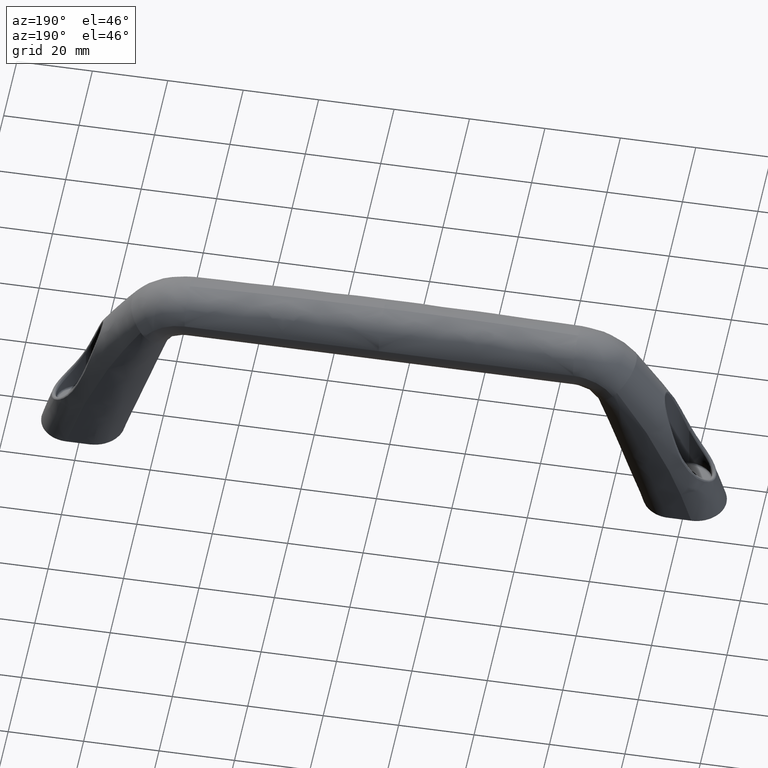
[diagram: clean part render]
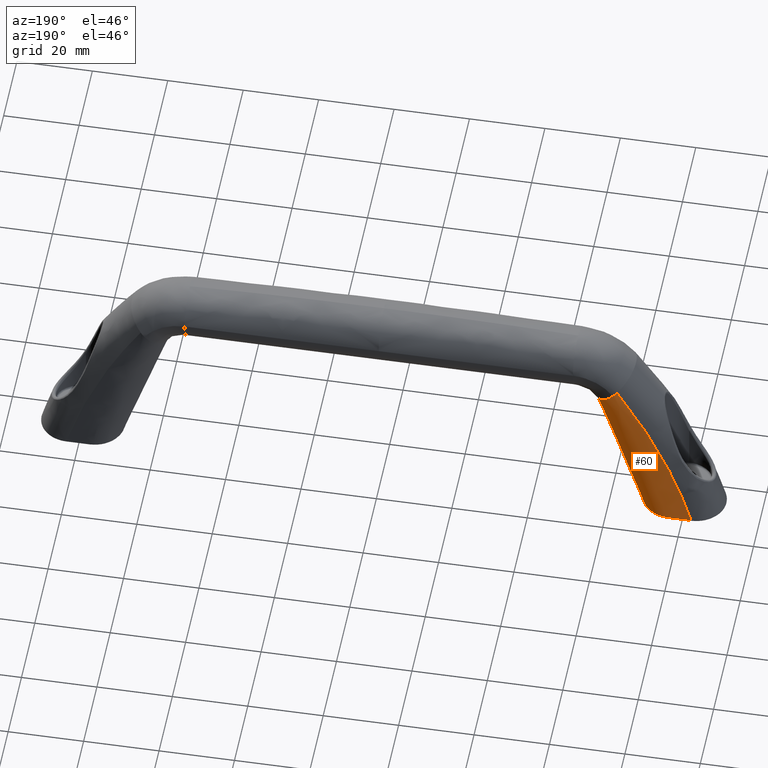
[diagram: same view with one face highlighted and labeled with its STEP entity id]
A machine part, auxiliary view. The second image highlights one B-rep face of the part: STEP entity #60.
In plain terms, the highlighted face is a freeform B-spline surface patch.
Its self-contained STEP definition (entity closure, byte-faithful):
#60=ADVANCED_FACE('',(#297),#296,.T.);
#296=( BOUNDED_SURFACE() B_SPLINE_SURFACE( 3,2,((#2112,#2113,#2114,#2115,#2116),(#2117,#2118,#2119,#2120,#2121),(#2122,#2123,#2124,#2125,#2126),(#2127,#2128,#2129,#2130,#2131),(#2132,#2133,#2134,#2135,#2136),(#2137,#2138,#2139,#2140,#2141),(#2142,#2143,#2144,#2145,#2146),(#2147,#2148,#2149,#2150,#2151),(#2152,#2153,#2154,#2155,#2156),(#2157,#2158,#2159,#2160,#2161)), .UNSPECIFIED.,.F.,.F.,.F.) B_SPLINE_SURFACE_WITH_KNOTS((4,2,2,2,4),(3,2,3),(-1.44328993201E-14,1.17126444058E+01,2.34252888115E+01,3.51379332173E+01,4.68505776231E+01),(-6.55031584529E-15,1.26555991594E+01,1.42983601190E+01), .UNSPECIFIED. ) GEOMETRIC_REPRESENTATION_ITEM() RATIONAL_B_SPLINE_SURFACE(((1.00000000000E+00,7.07106781187E-01,1.00000000000E+00,9.86890175793E-01,1.00000000000E+00),(1.00000000000E+00,7.07106781187E-01,1.00000000000E+00,9.86890175793E-01,1.00000000000E+00),(1.00000000000E+00,7.07106781187E-01,1.00000000000E+00,9.87709539806E-01,1.00000000000E+00),(1.00000000000E+00,7.07106781187E-01,1.00000000000E+00,9.90167631845E-01,1.00000000000E+00),(1.00000000000E+00,7.07106781187E-01,1.00000000000E+00,9.91806359871E-01,1.00000000000E+00),(1.00000000000E+00,7.07106781187E-01,1.00000000000E+00,9.95083815922E-01,1.00000000000E+00),(1.00000000000E+00,7.07106781187E-01,1.00000000000E+00,9.96722543948E-01,1.00000000000E+00),(1.00000000000E+00,7.07106781187E-01,1.00000000000E+00,9.99180635987E-01,1.00000000000E+00),(1.00000000000E+00,7.07106781187E-01,1.00000000000E+00,1.00000000000E+00,1.00000000000E+00),(1.00000000000E+00,7.07106781187E-01,1.00000000000E+00,1.00000000000E+00,1.00000000000E+00))) REPRESENTATION_ITEM('') SURFACE() );
#297=FACE_OUTER_BOUND('',#2162,.T.);
#2112=CARTESIAN_POINT('',(-1.36710008646E+02,2.85000000150E+01,5.86999733827E+01));
#2113=CARTESIAN_POINT('',(-1.36710008646E+02,3.65566123028E+01,5.86999733827E+01));
#2114=CARTESIAN_POINT('',(-1.42077784042E+02,3.65566123028E+01,6.47079671291E+01));
#2115=CARTESIAN_POINT('',(-1.42629878961E+02,3.65566123028E+01,6.53259107982E+01));
#2116=CARTESIAN_POINT('',(-1.43153212185E+02,3.62926413948E+01,6.59116623447E+01));
#2117=CARTESIAN_POINT('',(-1.37717507926E+02,2.85000000150E+01,5.55999755995E+01));
#2118=CARTESIAN_POINT('',(-1.37717507926E+02,3.65566123028E+01,5.55999755995E+01));
#2119=CARTESIAN_POINT('',(-1.44066837450E+02,3.65566123028E+01,6.13731842310E+01));
#2120=CARTESIAN_POINT('',(-1.44717450240E+02,3.65566123028E+01,6.19673061865E+01));
#2121=CARTESIAN_POINT('',(-1.45334507422E+02,3.62926413948E+01,6.25298085047E+01));
#2122=CARTESIAN_POINT('',(-1.38725007205E+02,2.85000000150E+01,5.24999778164E+01));
#2123=CARTESIAN_POINT('',(-1.38725007205E+02,3.65499490349E+01,5.24999778164E+01));
#2124=CARTESIAN_POINT('',(-1.45826392588E+02,3.65499490349E+01,5.78350418513E+01));
#2125=CARTESIAN_POINT('',(-1.46625971588E+02,3.65498661212E+01,5.84603993675E+01));
#2126=CARTESIAN_POINT('',(-1.47395205677E+02,3.63024763086E+01,5.90509917418E+01));
#2127=CARTESIAN_POINT('',(-1.40740005764E+02,2.85000000150E+01,4.62999822501E+01));
#2128=CARTESIAN_POINT('',(-1.40740005764E+02,3.65299592309E+01,4.62999822501E+01));
#2129=CARTESIAN_POINT('',(-1.48813989302E+02,3.65299592309E+01,5.05921628121E+01));
#2130=CARTESIAN_POINT('',(-1.50047073396E+02,3.65296945658E+01,5.12700237748E+01));
#2131=CARTESIAN_POINT('',(-1.51256108346E+02,3.63319810499E+01,5.19238773608E+01));
#2132=CARTESIAN_POINT('',(-1.41747505044E+02,2.85000000150E+01,4.31999844670E+01));
#2133=CARTESIAN_POINT('',(-1.41747505044E+02,3.65166326949E+01,4.31999844670E+01));
#2134=CARTESIAN_POINT('',(-1.50045584396E+02,3.65166326949E+01,4.68920730364E+01));
#2135=CARTESIAN_POINT('',(-1.51559614187E+02,3.65163024101E+01,4.75945984716E+01));
#2136=CARTESIAN_POINT('',(-1.53056414553E+02,3.63516508774E+01,4.82751480269E+01));
#2137=CARTESIAN_POINT('',(-1.43762503603E+02,2.85000000150E+01,3.69999889007E+01));
#2138=CARTESIAN_POINT('',(-1.43762503603E+02,3.64899796229E+01,3.69999889007E+01));
#2139=CARTESIAN_POINT('',(-1.52163518832E+02,3.64899796229E+01,3.95254143793E+01));
#2140=CARTESIAN_POINT('',(-1.54272445852E+02,3.64896504260E+01,4.01877819169E+01));
#2141=CARTESIAN_POINT('',(-1.56375563591E+02,3.63909905324E+01,4.08347918637E+01));
#2142=CARTESIAN_POINT('',(-1.44770002882E+02,2.85000000150E+01,3.38999911175E+01));
#2143=CARTESIAN_POINT('',(-1.44770002882E+02,3.64766530870E+01,3.38999911175E+01));
#2144=CARTESIAN_POINT('',(-1.53057403330E+02,3.64766530870E+01,3.58623401949E+01));
#2145=CARTESIAN_POINT('',(-1.55477269526E+02,3.64763901624E+01,3.64580292106E+01));
#2146=CARTESIAN_POINT('',(-1.57894400153E+02,3.64106603600E+01,3.70428377879E+01));
#2147=CARTESIAN_POINT('',(-1.46785001441E+02,2.85000000150E+01,2.76999955512E+01));
#2148=CARTESIAN_POINT('',(-1.46785001441E+02,3.64566632830E+01,2.76999955512E+01));
#2149=CARTESIAN_POINT('',(-1.54828675121E+02,3.64566632830E+01,2.86357902746E+01));
#2150=CARTESIAN_POINT('',(-1.57728478174E+02,3.64565813212E+01,2.89959656932E+01));
#2151=CARTESIAN_POINT('',(-1.60630410566E+02,3.64401651012E+01,2.93466784223E+01));
#2152=CARTESIAN_POINT('',(-1.47792500720E+02,2.85000000150E+01,2.45999977681E+01));
#2153=CARTESIAN_POINT('',(-1.47792500720E+02,3.64500000150E+01,2.45999977681E+01));
#2154=CARTESIAN_POINT('',(-1.55713045208E+02,3.64500000150E+01,2.50725591624E+01));
#2155=CARTESIAN_POINT('',(-1.58780192225E+02,3.64500000150E+01,2.52579581122E+01));
#2156=CARTESIAN_POINT('',(-1.61847484756E+02,3.64500000150E+01,2.54425119447E+01));
#2157=CARTESIAN_POINT('',(-1.48800000000E+02,2.85000000150E+01,2.14999999850E+01));
#2158=CARTESIAN_POINT('',(-1.48800000000E+02,3.64500000150E+01,2.14999999850E+01));
#2159=CARTESIAN_POINT('',(-1.56750000000E+02,3.64500000150E+01,2.14999999850E+01));
#2160=CARTESIAN_POINT('',(-1.59827710262E+02,3.64500000150E+01,2.14999999850E+01));
#2161=CARTESIAN_POINT('',(-1.62905420523E+02,3.64500000150E+01,2.14999999850E+01));
#2162=EDGE_LOOP('',(#4170,#4171,#4172,#4173,#4174));
#4170=ORIENTED_EDGE('',*,*,#4353,.F.);
#4171=ORIENTED_EDGE('',*,*,#4349,.F.);
#4172=ORIENTED_EDGE('',*,*,#4347,.F.);
#4173=ORIENTED_EDGE('',*,*,#4366,.T.);
#4174=ORIENTED_EDGE('',*,*,#4376,.F.);
#4347=EDGE_CURVE('',#4633,#4612,#4640,.T.);
#4349=EDGE_CURVE('',#4612,#4653,#4654,.T.);
#4353=EDGE_CURVE('',#4653,#4680,#4681,.T.);
#4366=EDGE_CURVE('',#4633,#4493,#4766,.T.);
#4376=EDGE_CURVE('',#4680,#4493,#4834,.T.);
#4493=VERTEX_POINT('',#5375);
#4612=VERTEX_POINT('',#5753);
#4633=VERTEX_POINT('',#5777);
#4640=LINE('',#5805,#5806);
#4653=VERTEX_POINT('',#5828);
#4654=CIRCLE('',#5832,8.05661228784E+00);
#4680=VERTEX_POINT('',#5862);
#4681=CIRCLE('',#5866,5.06705175328E+00);
#4766=(BOUNDED_CURVE() B_SPLINE_CURVE(3,(#5947,#5948,#5949,#5950,#5951,#5952,#5953,#5954,#5955,#5956,#5957,#5958,#5959,#5960,#5961,#5962,#5963,#5964,#5965,#5966,#5967,#5968,#5969,#5970,#5971,#5972,#5973,#5974,#5975,#5976,#5977,#5978,#5979,#5980),.UNSPECIFIED.,.F.,.F.) B_SPLINE_CURVE_WITH_KNOTS((4,2,1,2,2,2,2,2,2,2,2,2,2,2,2,2,1,4),(-1.86531113827E+01,-1.85073839500E+01,-1.83616565174E+01,-1.80702016519E+01,-1.74872919212E+01,-1.63214724599E+01,-1.39898335370E+01,-1.28240140756E+01,-1.16581946141E+01,-1.04923751528E+01,-9.32655569134E+00,-8.74364596062E+00,-8.16073622991E+00,-6.99491676850E+00,-6.41200703779E+00,-5.82909730708E+00,-4.66327784566E+00,0.00000000000E+00),.UNSPECIFIED.) CURVE() GEOMETRIC_REPRESENTATION_ITEM() RATIONAL_B_SPLINE_CURVE((1.00000000000E+00,1.00000000000E+00,1.00000000000E+00,1.00000000000E+00,1.00000000000E+00,1.00000000000E+00,1.00000000000E+00,1.00000000000E+00,1.00000000000E+00,1.00000000000E+00,1.00000000000E+00,1.00000000000E+00,1.00000000000E+00,1.00000000000E+00,1.00000000000E+00,1.00000000000E+00,1.00000000000E+00,1.00000000000E+00,1.00000000000E+00,1.00000000000E+00,1.00000000000E+00,1.00000000000E+00,1.00000000000E+00,1.00000000000E+00,1.00000000000E+00,1.00000000000E+00,1.00000000000E+00,1.00000000000E+00,1.00000000000E+00,1.00000000000E+00,1.00000000000E+00,1.00000000000E+00,1.00000000000E+00,1.00000000000E+00)) REPRESENTATION_ITEM('') );
#4834=(BOUNDED_CURVE() B_SPLINE_CURVE(3,(#6048,#6049,#6050,#6051,#6052,#6053,#6054,#6055,#6056,#6057,#6058,#6059,#6060),.UNSPECIFIED.,.F.,.F.) B_SPLINE_CURVE_WITH_KNOTS((4,3,3,3,4),(0.00000000000E+00,1.21205322609E+01,2.43157664782E+01,3.65582859415E+01,4.86065040064E+01),.UNSPECIFIED.) CURVE() GEOMETRIC_REPRESENTATION_ITEM() RATIONAL_B_SPLINE_CURVE((1.00000000000E+00,1.00000000000E+00,1.00000000000E+00,1.00000000000E+00,1.00000000000E+00,1.00000000000E+00,1.00000000000E+00,1.00000000000E+00,1.00000000000E+00,1.00000000000E+00,1.00000000000E+00,1.00000000000E+00,1.00000000000E+00)) REPRESENTATION_ITEM('') );
#5375=CARTESIAN_POINT('',(-1.62851602309E+02,3.64499915980E+01,2.17000175471E+01));
#5753=CARTESIAN_POINT('',(-1.36710008646E+02,2.85000000150E+01,5.86999733827E+01));
#5777=CARTESIAN_POINT('',(-1.48755090595E+02,2.85000000150E+01,2.16381827705E+01));
#5805=CARTESIAN_POINT('',(-1.48755090595E+02,2.85000000150E+01,2.16381827705E+01));
#5806=VECTOR('',#5807,3.89699925909E+01);
#5807=DIRECTION('',(3.09086072336E-01,0.00000000000E+00,9.51034068731E-01));
#5828=CARTESIAN_POINT('',(-1.42077784042E+02,3.65566123028E+01,6.47079671291E+01));
#5829=CARTESIAN_POINT('',(-1.42077784042E+02,2.85000000150E+01,6.47079671292E+01));
#5830=DIRECTION('',(7.45722089115E-01,1.39462787650E-11,6.66257131899E-01));
#5831=DIRECTION('',(-6.66257131899E-01,1.52663356714E-12,7.45722089115E-01));
#5832=AXIS2_PLACEMENT_3D('',#5829,#5830,#5831);
#5862=CARTESIAN_POINT('',(-1.43153212185E+02,3.62926413948E+01,6.59116623447E+01));
#5863=CARTESIAN_POINT('',(-1.42077784042E+02,3.14895605496E+01,6.47079671293E+01));
#5864=DIRECTION('',(7.45722089114E-01,5.47199153982E-11,6.66257131899E-01));
#5865=DIRECTION('',(3.27684883788E-11,-1.00000000000E+00,4.54535168740E-11));
#5866=AXIS2_PLACEMENT_3D('',#5863,#5864,#5865);
#5947=CARTESIAN_POINT('',(-1.48755090595E+02,2.85000000150E+01,2.16381827705E+01));
#5948=CARTESIAN_POINT('',(-1.48755090612E+02,2.85479714952E+01,2.16381827195E+01));
#5949=CARTESIAN_POINT('',(-1.48755548246E+02,2.85985446403E+01,2.16381864114E+01));
#5950=CARTESIAN_POINT('',(-1.48757373563E+02,2.86969340209E+01,2.16382009286E+01));
#5951=CARTESIAN_POINT('',(-1.48761476767E+02,2.88443614658E+01,2.16382335615E+01));
#5952=CARTESIAN_POINT('',(-1.48769654380E+02,2.89913214740E+01,2.16382985988E+01));
#5953=CARTESIAN_POINT('',(-1.48791406850E+02,2.92846222909E+01,2.16384716147E+01));
#5954=CARTESIAN_POINT('',(-1.48813097495E+02,2.94793314105E+01,2.16386441524E+01));
#5955=CARTESIAN_POINT('',(-1.48899722823E+02,3.00609860546E+01,2.16393334828E+01));
#5956=CARTESIAN_POINT('',(-1.48986685363E+02,3.04469897256E+01,2.16400257575E+01));
#5957=CARTESIAN_POINT('',(-1.49331691630E+02,3.15777870831E+01,2.16427758750E+01));
#5958=CARTESIAN_POINT('',(-1.49665712369E+02,3.22801255714E+01,2.16454435664E+01));
#5959=CARTESIAN_POINT('',(-1.50320681383E+02,3.32573774706E+01,2.16506816608E+01));
#5960=CARTESIAN_POINT('',(-1.50564590321E+02,3.35684856720E+01,2.16526329298E+01));
#5961=CARTESIAN_POINT('',(-1.51088904649E+02,3.41445312625E+01,2.16568226083E+01));
#5962=CARTESIAN_POINT('',(-1.51371000327E+02,3.44121380199E+01,2.16590745938E+01));
#5963=CARTESIAN_POINT('',(-1.51975360208E+02,3.49062210805E+01,2.16638831935E+01));
#5964=CARTESIAN_POINT('',(-1.52300287182E+02,3.51339465318E+01,2.16664607295E+01));
#5965=CARTESIAN_POINT('',(-1.52971833881E+02,3.55337846377E+01,2.16717556587E+01));
#5966=CARTESIAN_POINT('',(-1.53319792202E+02,3.57075315461E+01,2.16744838295E+01));
#5967=CARTESIAN_POINT('',(-1.53859792782E+02,3.59293543828E+01,2.16786798333E+01));
#5968=CARTESIAN_POINT('',(-1.54042815620E+02,3.59968030230E+01,2.16800958551E+01));
#5969=CARTESIAN_POINT('',(-1.54415019707E+02,3.61184727707E+01,2.16829604689E+01));
#5970=CARTESIAN_POINT('',(-1.54605175615E+02,3.61729088404E+01,2.16844164499E+01));
#5971=CARTESIAN_POINT('',(-1.55176376975E+02,3.63136434678E+01,2.16887637709E+01));
#5972=CARTESIAN_POINT('',(-1.55558181963E+02,3.63779137299E+01,2.16916350262E+01));
#5973=CARTESIAN_POINT('',(-1.56132308403E+02,3.64325560407E+01,2.16958908764E+01));
#5974=CARTESIAN_POINT('',(-1.56323921453E+02,3.64437779165E+01,2.16973010127E+01));
#5975=CARTESIAN_POINT('',(-1.56707620100E+02,3.64523136552E+01,2.17001028520E+01));
#5976=CARTESIAN_POINT('',(-1.56899695664E+02,3.64500068956E+01,2.16999866201E+01));
#5977=CARTESIAN_POINT('',(-1.57475686596E+02,3.64500065454E+01,2.16999873630E+01));
#5978=CARTESIAN_POINT('',(-1.59395656361E+02,3.64500044331E+01,2.16999917199E+01));
#5979=CARTESIAN_POINT('',(-1.61315626459E+02,3.64499982111E+01,2.17000042587E+01));
#5980=CARTESIAN_POINT('',(-1.62851602309E+02,3.64499915980E+01,2.17000175471E+01));
#6048=CARTESIAN_POINT('',(-1.43153212185E+02,3.62926413948E+01,6.59116623447E+01));
#6049=CARTESIAN_POINT('',(-1.45334507422E+02,3.62926413948E+01,6.25298085047E+01));
#6050=CARTESIAN_POINT('',(-1.47395205677E+02,3.63024763086E+01,5.90509917418E+01));
#6051=CARTESIAN_POINT('',(-1.49325657011E+02,3.63172286792E+01,5.54874345513E+01));
#6052=CARTESIAN_POINT('',(-1.51256108346E+02,3.63319810499E+01,5.19238773608E+01));
#6053=CARTESIAN_POINT('',(-1.53056414553E+02,3.63516508774E+01,4.82751480269E+01));
#6054=CARTESIAN_POINT('',(-1.54715989072E+02,3.63713207049E+01,4.45549699453E+01));
#6055=CARTESIAN_POINT('',(-1.56375563591E+02,3.63909905324E+01,4.08347918637E+01));
#6056=CARTESIAN_POINT('',(-1.57894400153E+02,3.64106603600E+01,3.70428377879E+01));
#6057=CARTESIAN_POINT('',(-1.59262405359E+02,3.64254127306E+01,3.31947581051E+01));
#6058=CARTESIAN_POINT('',(-1.60607272170E+02,3.64399155801E+01,2.94117647171E+01));
#6059=CARTESIAN_POINT('',(-1.61806270470E+02,3.64496659134E+01,2.55745657893E+01));
#6060=CARTESIAN_POINT('',(-1.62851602309E+02,3.64499915980E+01,2.17000175471E+01));